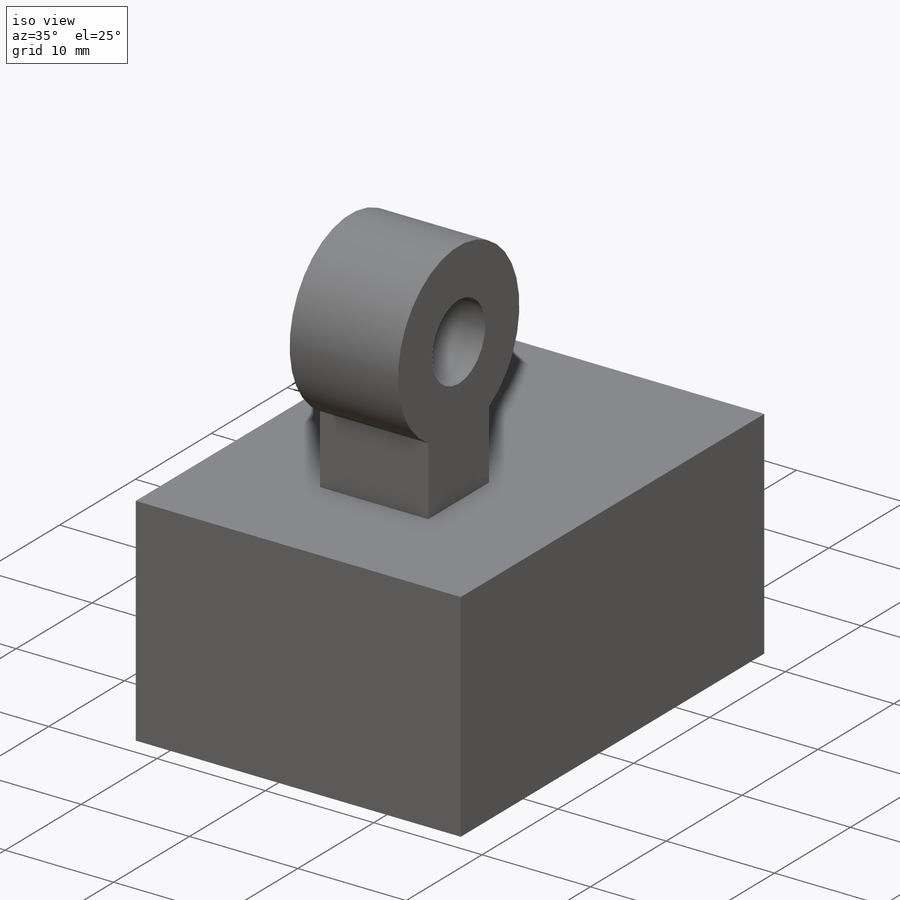
[diagram: iso view]
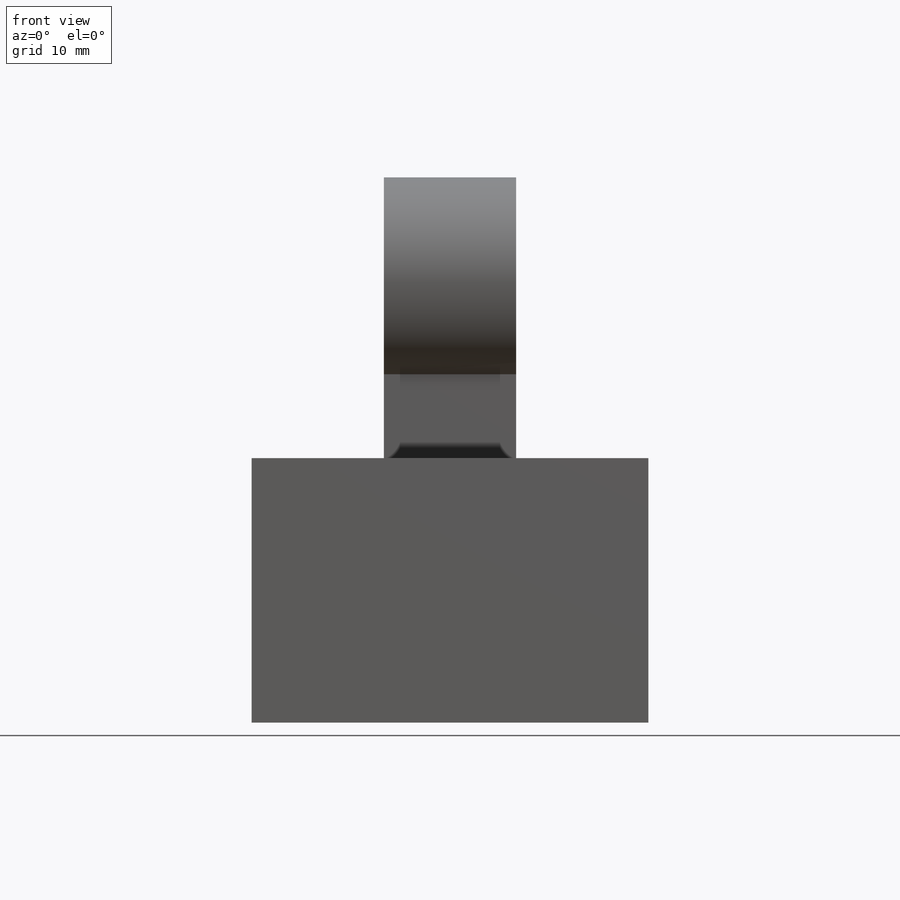
[diagram: front view]
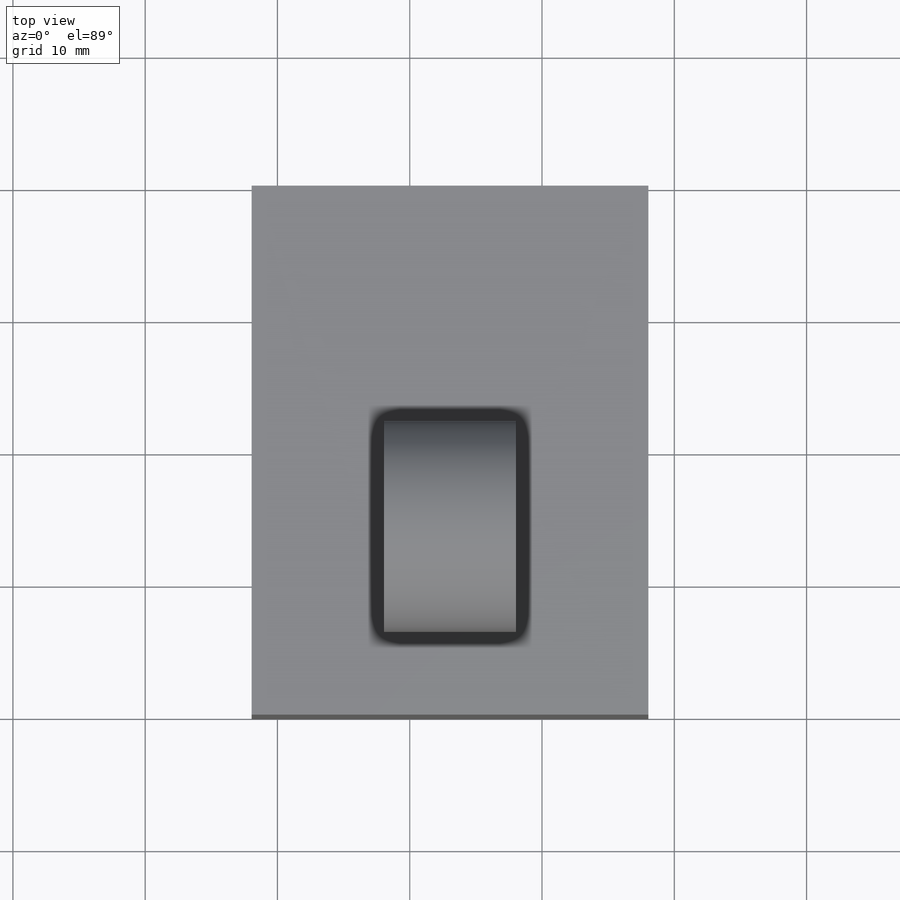
[diagram: top view]
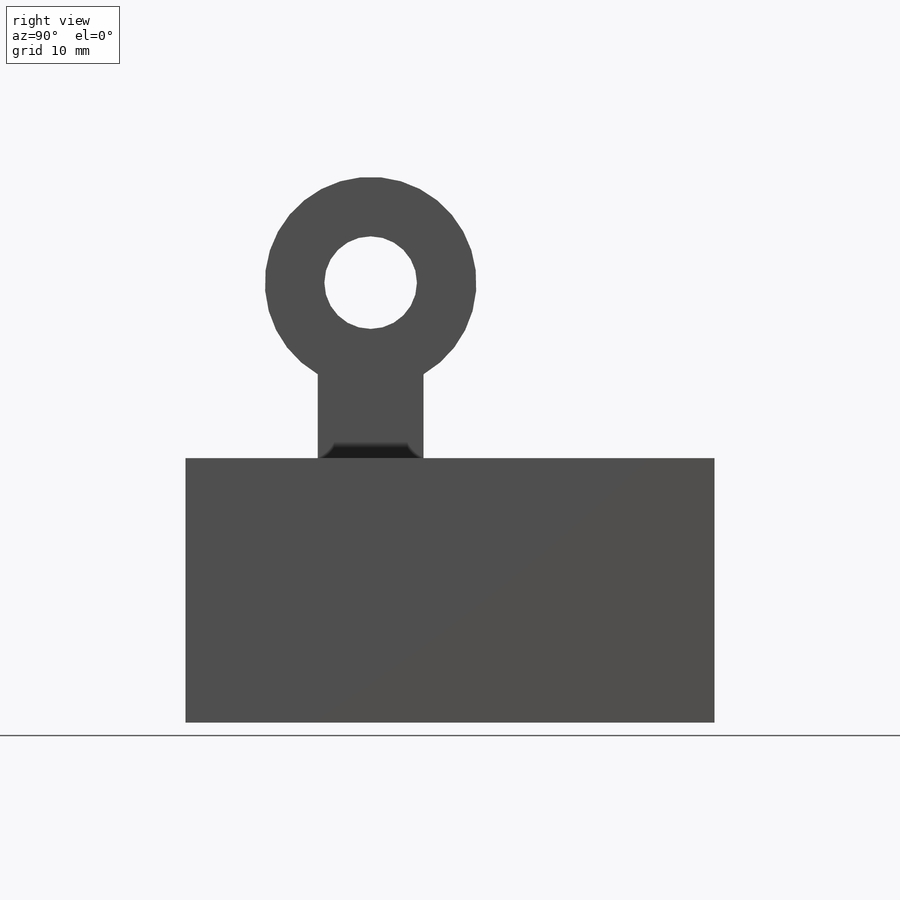
[diagram: right view]
SOLIDWORKS PART (.sldprt)
format: sldprt  version: not decoded by parser v0  size: 193,024 bytes
history: native  units: mm
features: sketch x6, plane x3, extrude x3, material x1 (+9 scaffold rows collapsed)
feature tree (22):
  scaffold x9  (default folders/planes/origin — collapsed)
  material  "Matériau <non spécifié>"
  plane  "Plan de face"
  plane  "Plan de dessus"
  plane  "Plan de droite"
  sketch  "Esquisse1"  dims[c1.D1=30.0mm c1.D2=20.0mm c1.D3=5.0mm c1.D4=5.0mm c1.D5=12.5mm c1.D6=12.5mm c2.D3=30.0mm]
  extrude  "Boss.-Extru.1"  Depth=40mm
  sketch  "Esquisse2"
  sketch  "Esquisse3"  dims[D1=10.0mm D2=10.0mm D3=10.0mm D4=8.0mm]
  extrude  "Boss.-Extru.2"  Depth=8mm
  sketch  "Esquisse4"  dims[c1.D1=3.7mm c1.D2=4.0mm c1.D3=~62.696179mm c2.D3=~88.239236deg c3.D3=20.0mm c4.D3=~1.760764deg c4.D4=~62.696179mm c5.D3=20.0mm c6.D3=~5.447744deg]
  sketch  "Esquisse5"
  sketch  "Esquisse6"  dims[c1.D3=16.0mm c1.D4=7.0mm c1.D1=4.0mm c1.D2=8.0mm c2.D2=90.0deg c2.D5=8.0mm]
  extrude  "Boss.-Extru.3"  Depth=10mm
decode coverage: 7 of 9 modeling features carry decoded parameters
note: ~ marks probable driven/reference dimensions
note: suppression state not decoded; provenance and decode notes live in map.json
